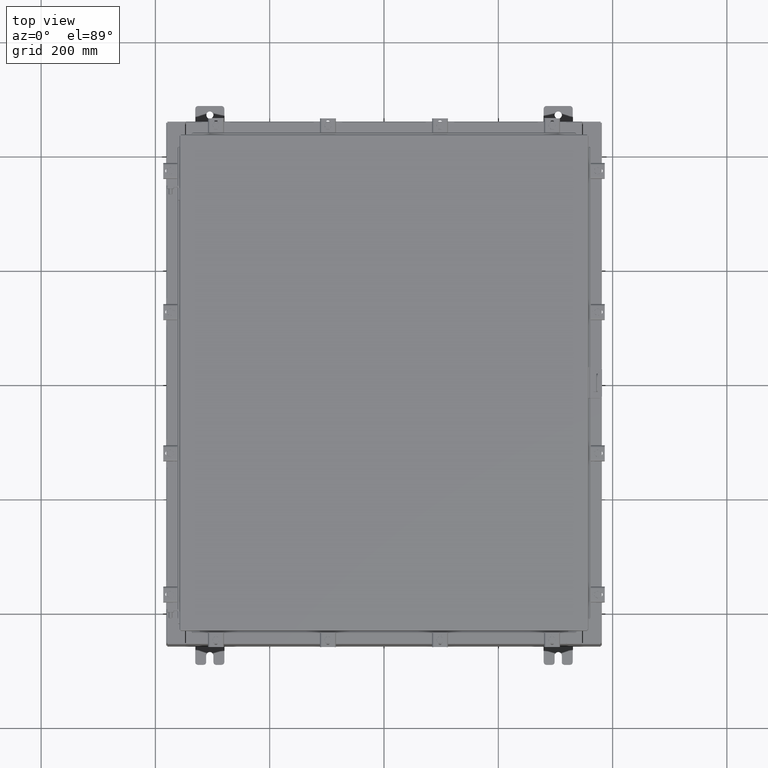
[diagram: clean part render]
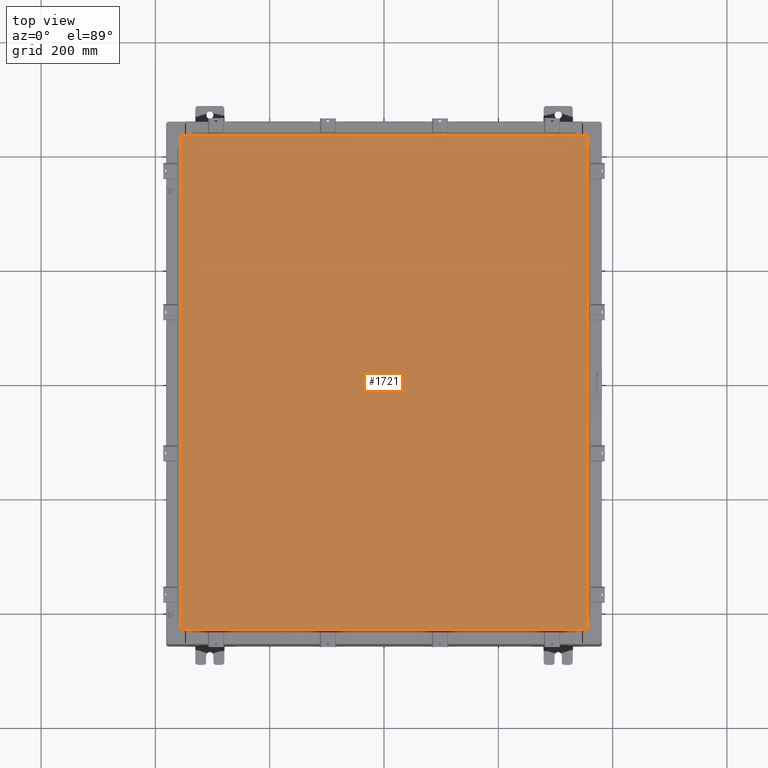
[diagram: same view with one face highlighted and labeled with its STEP entity id]
A machine part, top view. The second image highlights one B-rep face of the part: STEP entity #1721.
In plain terms, the highlighted planar face has unit normal (0, 0, -1).
Its self-contained STEP definition (entity closure, byte-faithful):
#1721 = ADVANCED_FACE ( 'NONE', ( #13640 ), #21628, .F. ) ;
#1933 = VECTOR ( 'NONE', #5192, 39.37007874015748100 ) ;
#2066 = ORIENTED_EDGE ( 'NONE', *, *, #5846, .T. ) ;
#2505 = EDGE_CURVE ( 'NONE', #22547, #18033, #19492, .T. ) ;
#2583 = CARTESIAN_POINT ( 'NONE',  ( 13.99029999999999600, 17.00629999999999600, 8.878505979408856000E-016 ) ) ;
#3485 = LINE ( 'NONE', #17730, #13000 ) ;
#5192 = DIRECTION ( 'NONE',  ( -1.000000000000000000, -0.0000000000000000000, -0.0000000000000000000 ) ) ;
#5846 = EDGE_CURVE ( 'NONE', #18033, #7310, #18175, .T. ) ;
#6207 = DIRECTION ( 'NONE',  ( 0.0000000000000000000, 0.0000000000000000000, -1.000000000000000000 ) ) ;
#6438 = DIRECTION ( 'NONE',  ( 0.0000000000000000000, 1.000000000000000000, 0.0000000000000000000 ) ) ;
#6895 = EDGE_LOOP ( 'NONE', ( #17487, #15630, #2066, #16614 ) ) ;
#6910 = CARTESIAN_POINT ( 'NONE',  ( -13.99029999999999800, -17.00630000000000300, -2.048885995248197400E-016 ) ) ;
#7310 = VERTEX_POINT ( 'NONE', #16947 ) ;
#10480 = AXIS2_PLACEMENT_3D ( 'NONE', #16970, #6207, #22861 ) ;
#10546 = CARTESIAN_POINT ( 'NONE',  ( 13.99029999999999800, -17.00630000000000700, -2.048885995248197400E-016 ) ) ;
#13000 = VECTOR ( 'NONE', #15868, 39.37007874015748100 ) ;
#13640 = FACE_OUTER_BOUND ( 'NONE', #6895, .T. ) ;
#14065 = LINE ( 'NONE', #6910, #23477 ) ;
#14283 = CARTESIAN_POINT ( 'NONE',  ( 13.99029999999999800, -17.00630000000000700, -2.048885995248197400E-016 ) ) ;
#14467 = VECTOR ( 'NONE', #6438, 39.37007874015748100 ) ;
#14696 = VERTEX_POINT ( 'NONE', #19458 ) ;
#15377 = EDGE_CURVE ( 'NONE', #7310, #14696, #3485, .T. ) ;
#15630 = ORIENTED_EDGE ( 'NONE', *, *, #2505, .T. ) ;
#15868 = DIRECTION ( 'NONE',  ( 0.0000000000000000000, -1.000000000000000000, 0.0000000000000000000 ) ) ;
#16325 = DIRECTION ( 'NONE',  ( 1.000000000000000000, -0.0000000000000000000, -0.0000000000000000000 ) ) ;
#16433 = CARTESIAN_POINT ( 'NONE',  ( 13.99029999999999600, 17.00629999999999600, 8.878505979408856000E-016 ) ) ;
#16614 = ORIENTED_EDGE ( 'NONE', *, *, #15377, .T. ) ;
#16947 = CARTESIAN_POINT ( 'NONE',  ( -13.99030000000000000, 17.00630000000000000, -2.048885995248197400E-016 ) ) ;
#16970 = CARTESIAN_POINT ( 'NONE',  ( 0.0000000000000000000, 0.0000000000000000000, 0.0000000000000000000 ) ) ;
#17487 = ORIENTED_EDGE ( 'NONE', *, *, #17505, .T. ) ;
#17505 = EDGE_CURVE ( 'NONE', #14696, #22547, #14065, .T. ) ;
#17730 = CARTESIAN_POINT ( 'NONE',  ( -13.99030000000000000, 17.00630000000000000, -2.048885995248197400E-016 ) ) ;
#18033 = VERTEX_POINT ( 'NONE', #2583 ) ;
#18175 = LINE ( 'NONE', #16433, #1933 ) ;
#19458 = CARTESIAN_POINT ( 'NONE',  ( -13.99029999999999800, -17.00630000000000300, -2.048885995248197400E-016 ) ) ;
#19492 = LINE ( 'NONE', #10546, #14467 ) ;
#21628 = PLANE ( 'NONE',  #10480 ) ;
#22547 = VERTEX_POINT ( 'NONE', #14283 ) ;
#22861 = DIRECTION ( 'NONE',  ( -1.000000000000000000, 0.0000000000000000000, -0.0000000000000000000 ) ) ;
#23477 = VECTOR ( 'NONE', #16325, 39.37007874015748100 ) ;